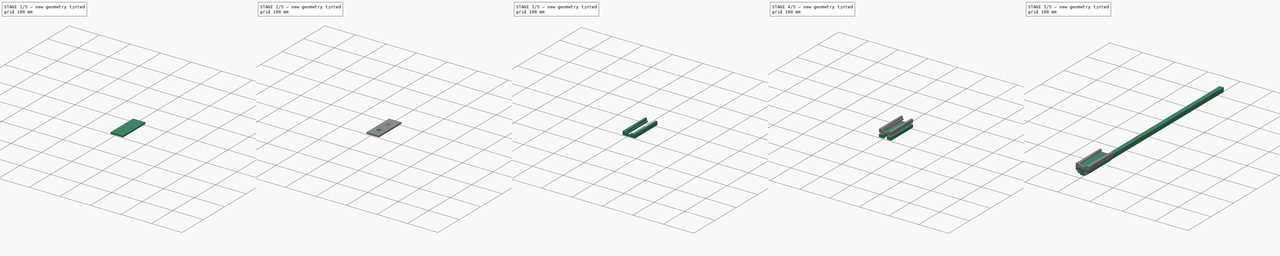
[diagram: build sequence overview — one tinted view per stage of 5, left to right]
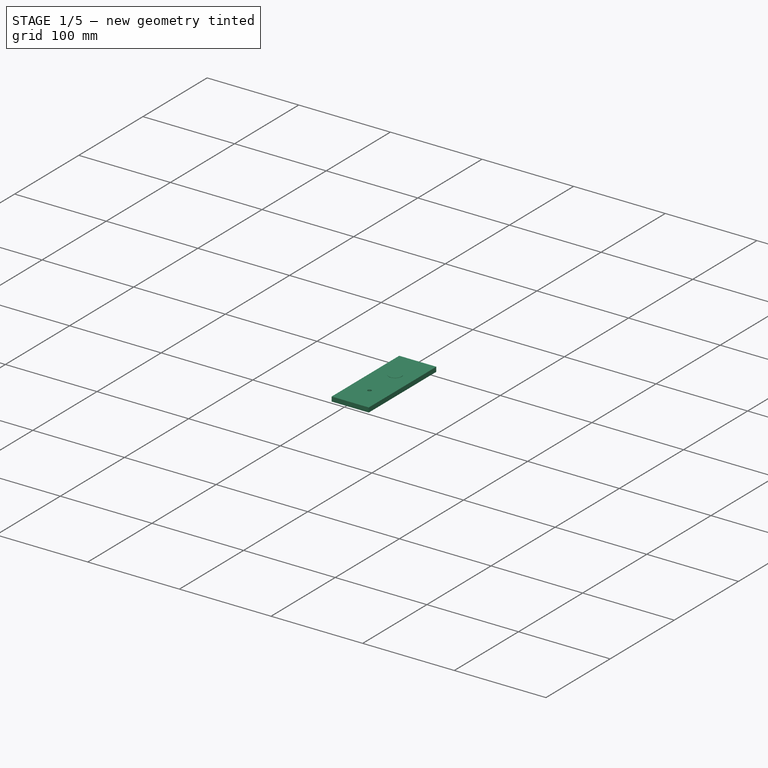
[diagram: stage 1 of 5 — iso view after this stage's code; geometry added in this stage tinted green]
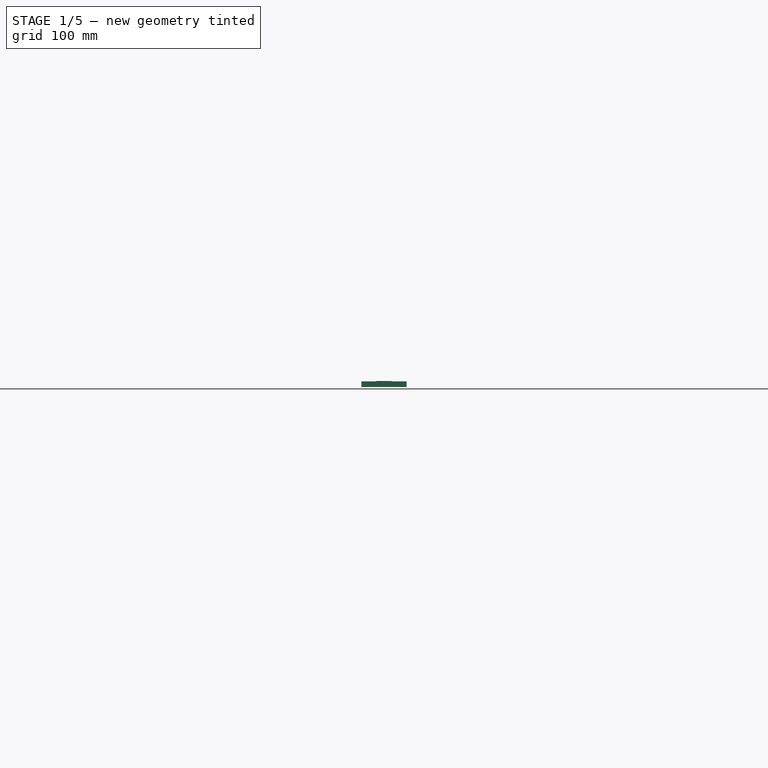
[diagram: stage 1 of 5 — front view after this stage's code; geometry added in this stage tinted green]
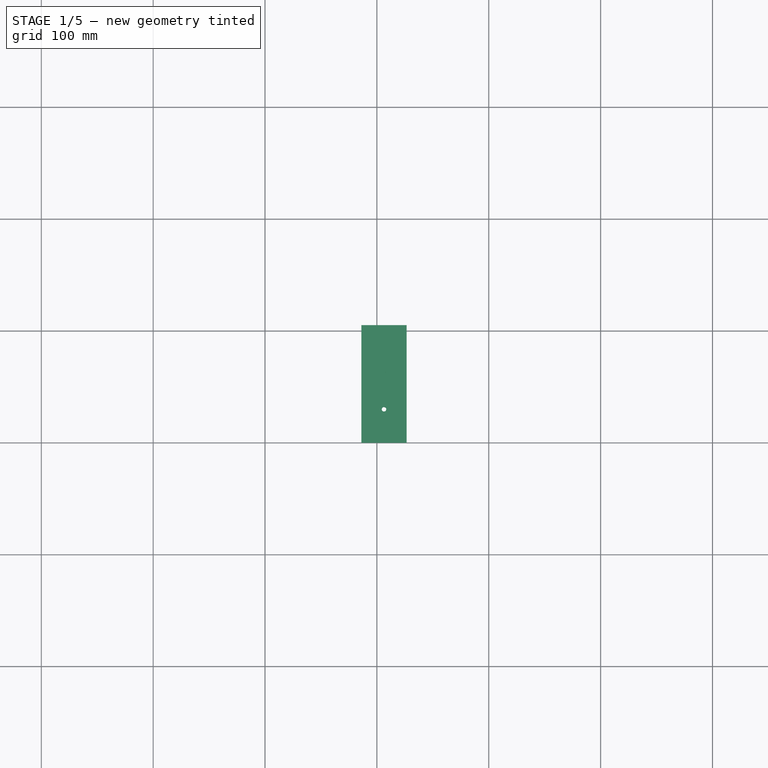
[diagram: stage 1 of 5 — top view after this stage's code; geometry added in this stage tinted green]
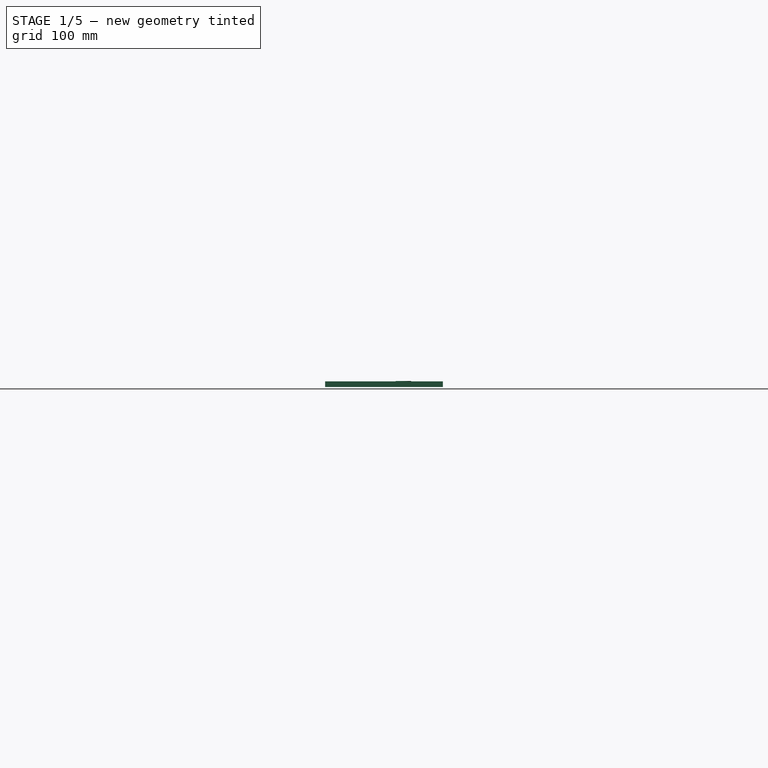
[diagram: stage 1 of 5 — right view after this stage's code; geometry added in this stage tinted green]
FCSTD DOCUMENT  (FreeCAD 0.21R33771 (Git))
Label: pcb_mount
License: All rights reserved
LicenseURL: https://en.wikipedia.org/wiki/All_rights_reserved
objects: Sketcher::SketchObject×5, Part::Extrusion×5, Part::Chamfer×4, Part::Cylinder×4, Part::Cut×4, Part::Box×2, Part::MultiFuse×2, Part::Fillet×1
note: 27 computed .brp shape members not serialized (recipe doc carries the construction recipe); baked Part::Feature solids carry a one-line shape summary decoded from their .brp

FEATURE [Sketcher::SketchObject] Sketch  label="BasePlateSketch"
  FullyConstrained = true
  sketch-geometry (4):
    g0: LineSegment StartX=20.24 StartY=0 StartZ=0 EndX=-20.24 EndY=0 EndZ=0
    g1: LineSegment StartX=-20.24 StartY=0 StartZ=0 EndX=-20.24 EndY=105.25 EndZ=0
    g2: LineSegment StartX=-20.24 StartY=105.25 StartZ=0 EndX=20.24 EndY=105.25 EndZ=0
    g3: LineSegment StartX=20.24 StartY=105.25 StartZ=0 EndX=20.24 EndY=0 EndZ=0
  constraints (12):
    c: Coincident(g0,g1)
    c: Coincident(g1,g2)
    c: Coincident(g2,g3)
    c: Coincident(g3,g0)
    c: Horizontal(g0)
    c: Horizontal(g2)
    c: Vertical(g1)
    c: Vertical(g3)
    c: PointOnObject(g0,g-1)
    c: DistanceX(g0,g0) = 40.48
    c: DistanceY(g1,g1) = 105.25
    c: DistanceX(g-1,g0) = 20.24
FEATURE [Part::Extrusion] Extrude  label="BasePlate"
  Base = -> Sketch
  Dir = (0,0,1)
  DirMode = 2
  FaceMakerClass = Part::FaceMakerBullseye
  LengthFwd = 5
  LengthRev = 0
  Placement = pos=(6.35,0,12.7) rot=(0,0,1;0rad)
  Solid = true
  Symmetric = false
FEATURE [Part::Cylinder] Cylinder  label="screwhole1"
  Angle = 360
  AttacherType = Attacher::AttachEngine3D
  FirstAngle = 0
  Height = 10
  Placement = pos=(6.35,30,10) rot=(0,0,1;0rad)
  Radius = 2
  SecondAngle = 0
FEATURE [Part::Cut] Cut
  Base = -> Extrude
  Tool = -> Cylinder
FEATURE [Part::Cylinder] Cylinder003  label="countersink002"
  Angle = 360
  AttacherType = Attacher::AttachEngine3D
  FirstAngle = 0
  Height = 3
  Placement = pos=(6.35,70,15) rot=(0,0,1;0rad)
  Radius = 7
  SecondAngle = 0
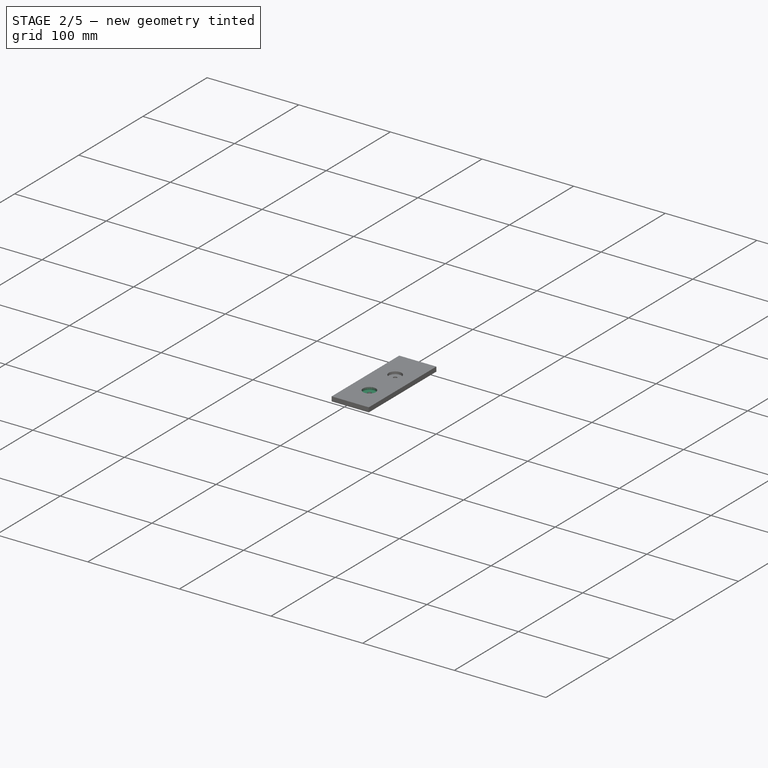
[diagram: stage 2 of 5 — iso view after this stage's code; geometry added in this stage tinted green]
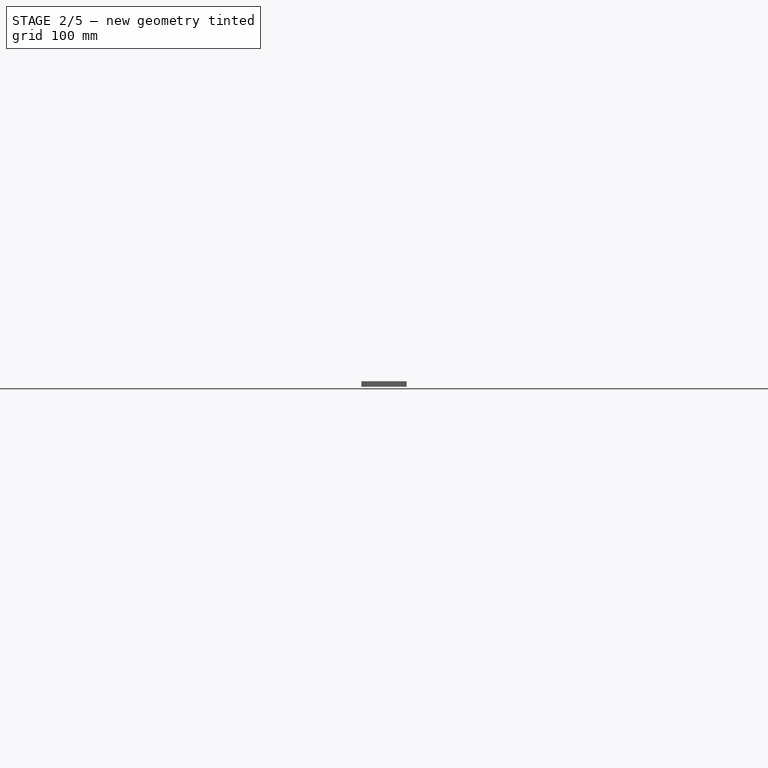
[diagram: stage 2 of 5 — front view after this stage's code; geometry added in this stage tinted green]
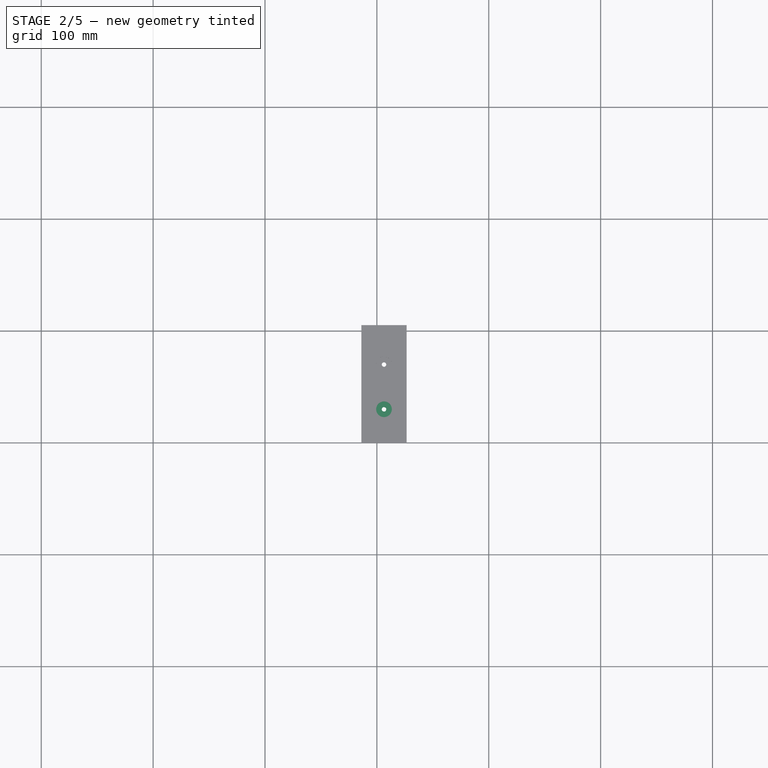
[diagram: stage 2 of 5 — top view after this stage's code; geometry added in this stage tinted green]
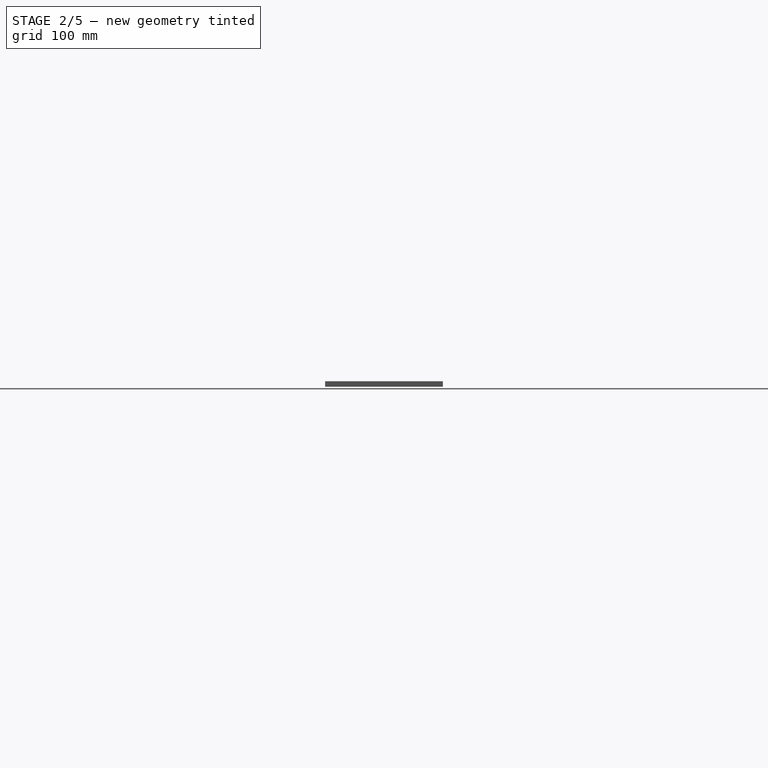
[diagram: stage 2 of 5 — right view after this stage's code; geometry added in this stage tinted green]
FEATURE [Part::Cylinder] Cylinder001  label="screwhole2"
  Angle = 360
  AttacherType = Attacher::AttachEngine3D
  FirstAngle = 0
  Height = 10
  Placement = pos=(6.35,70,10) rot=(0,0,1;0rad)
  Radius = 2
  SecondAngle = 0
FEATURE [Part::Cut] Cut001
  Base = -> Cut
  Tool = -> Cylinder001
FEATURE [Part::Cylinder] Cylinder002  label="countersink1"
  Angle = 360
  AttacherType = Attacher::AttachEngine3D
  FirstAngle = 0
  Height = 3
  Placement = pos=(6.35,30,15) rot=(0,0,1;0rad)
  Radius = 7
  SecondAngle = 0
FEATURE [Part::Cut] Cut002
  Base = -> Cut001
  Tool = -> Cylinder003
FEATURE [Part::Cut] Cut003  label="Baseplate"
  Base = -> Cut002
  Tool = -> Cylinder002
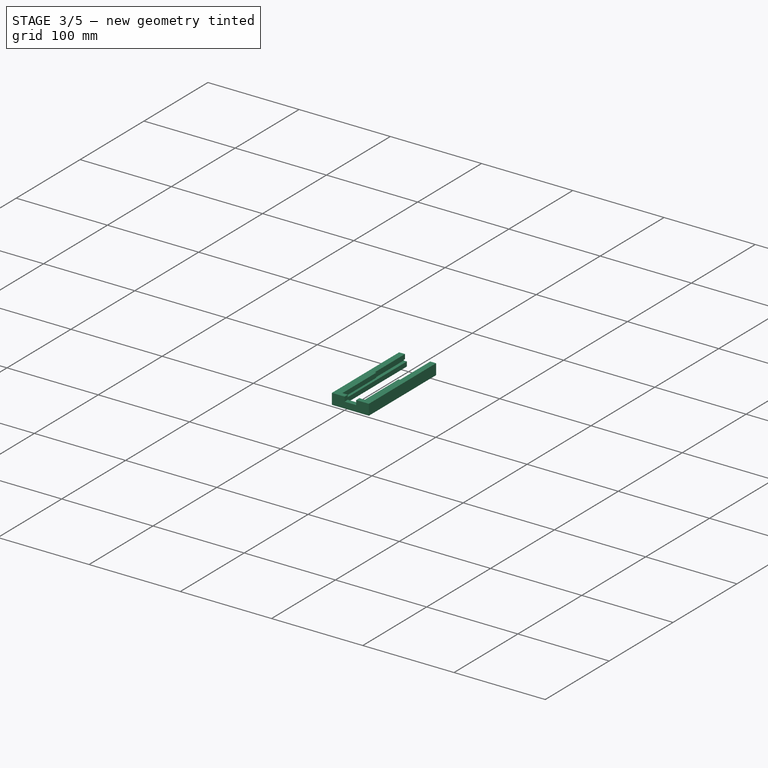
[diagram: stage 3 of 5 — iso view after this stage's code; geometry added in this stage tinted green]
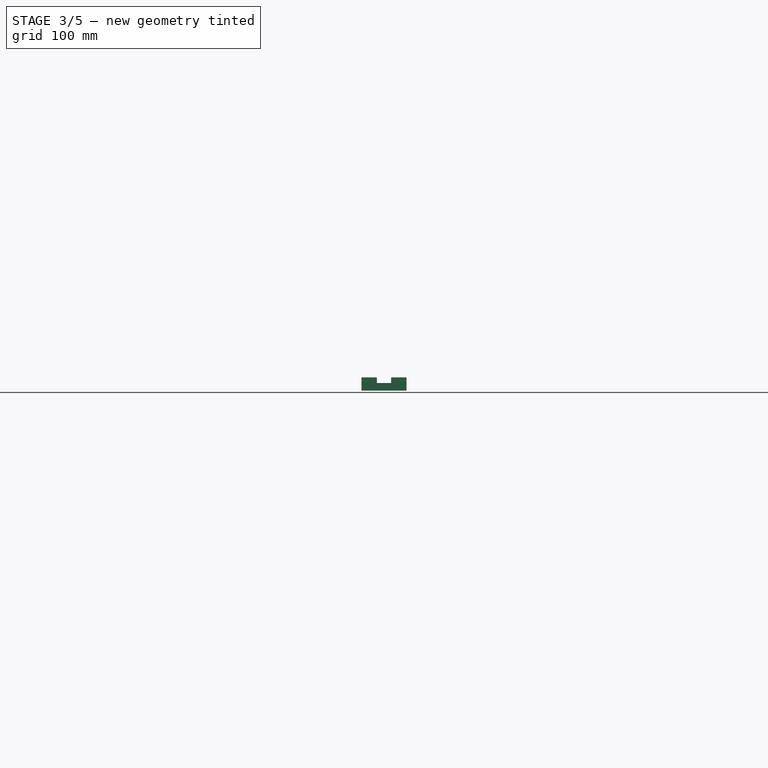
[diagram: stage 3 of 5 — front view after this stage's code; geometry added in this stage tinted green]
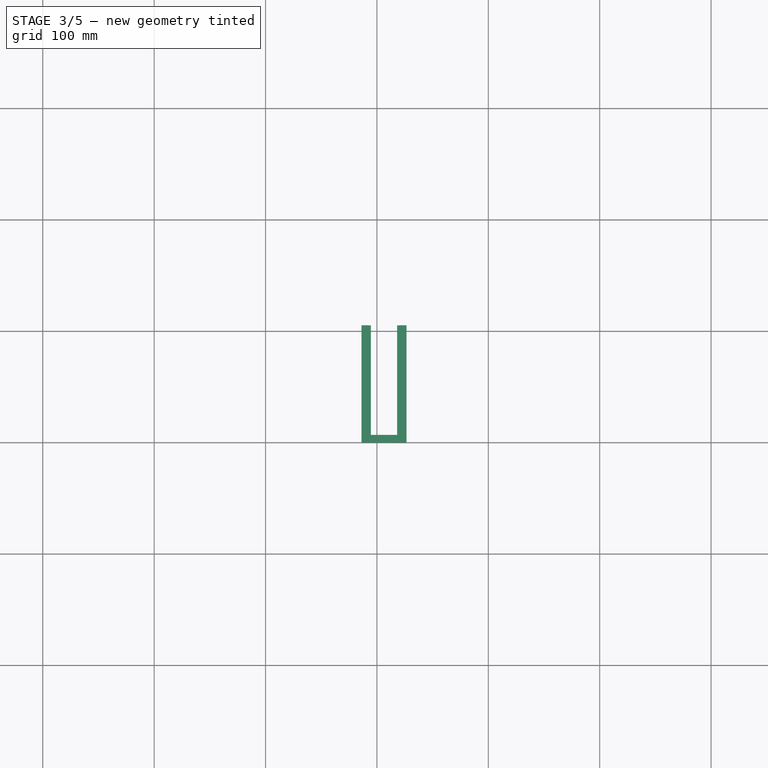
[diagram: stage 3 of 5 — top view after this stage's code; geometry added in this stage tinted green]
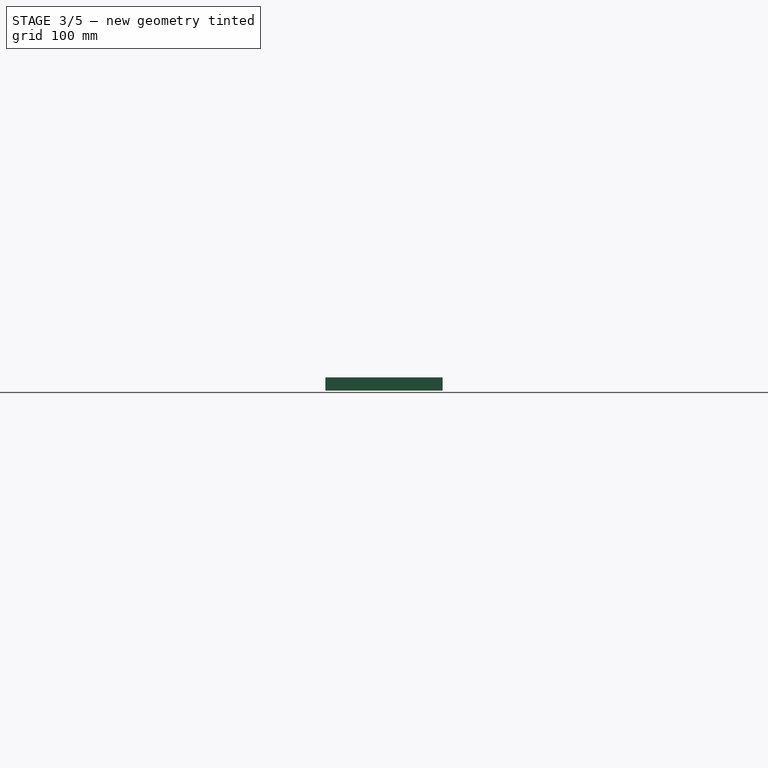
[diagram: stage 3 of 5 — right view after this stage's code; geometry added in this stage tinted green]
FEATURE [Part::Extrusion] Extrude002  label="PCBArmsA"
  Base = -> Sketch002
  Dir = (0,0,1)
  DirMode = 2
  FaceMakerClass = Part::FaceMakerBullseye
  LengthFwd = 5
  LengthRev = 0
  Solid = true
  Symmetric = false
FEATURE [Sketcher::SketchObject] Sketch003
  FullyConstrained = false
  MapMode = 5
  Placement = pos=(0,0,22.7) rot=(0,0,1;0rad)
  Support = -> [Extrude002]
  sketch-geometry (10):
    g0: LineSegment StartX=-13.89 StartY=0 StartZ=0 EndX=26.59 EndY=0 EndZ=0
    g1: LineSegment StartX=26.59 StartY=0 StartZ=0 EndX=26.59 EndY=5 EndZ=0
    g2: LineSegment StartX=-13.89 StartY=5 StartZ=0 EndX=-13.89 EndY=0 EndZ=0
    g3: LineSegment StartX=-8.89 StartY=5 StartZ=0 EndX=-8.89 EndY=105.25 EndZ=0
    g4: LineSegment StartX=-8.89 StartY=105.25 StartZ=0 EndX=-13.89 EndY=105.25 EndZ=0
    g5: LineSegment StartX=-13.89 StartY=105.25 StartZ=0 EndX=-13.89 EndY=5 EndZ=0
    g6: LineSegment StartX=26.59 StartY=5 StartZ=0 EndX=26.59 EndY=105.25 EndZ=0
    g7: LineSegment StartX=26.59 StartY=105.25 StartZ=0 EndX=21.59 EndY=105.25 EndZ=0
    g8: LineSegment StartX=21.59 StartY=105.25 StartZ=0 EndX=21.59 EndY=5 EndZ=0
    g9: LineSegment StartX=-8.89 StartY=5 StartZ=0 EndX=21.59 EndY=5 EndZ=0
  constraints (31):
    c: Coincident(g0,g1)
    c: Coincident(g2,g0)
    c: Horizontal(g0)
    c: Vertical(g1)
    c: Vertical(g2)
    c: PointOnObject(g0,g-1)
    c: DistanceX(g0,g0) = 40.48
    c: DistanceY(g2,g2) = 5
    c: DistanceX(g0,g-1) = 13.89
    c: Coincident(g3,g4)
    c: Coincident(g4,g5)
    c: Horizontal(g4)
    c: Vertical(g3)
    c: Vertical(g5)
    c: DistanceY(g5,g5) = 100.25
    c: DistanceX(g4,g4) = 5
    c: Coincident(g6,g7)
    c: Coincident(g7,g8)
    c: Horizontal(g7)
    c: Vertical(g6)
    c: Vertical(g8)
    c: DistanceY(g6,g6) = 100.25
    c: Coincident(g9,g3)
    c: Coincident(g9,g8)
    c: Horizontal(g9)
    c: DistanceX(g8,g1) = 5
    c: DistanceX(g2,g3) = 5
    c: DistanceY(g0,g3) = 5
    c: DistanceY(g1,g1) = 5
    c: DistanceY(g3,g3) = 100.25
    c: DistanceY(g8,g8) = 100.25
FEATURE [Part::Extrusion] Extrude003  label="PCBArmsB"
  Base = -> Sketch003
  Dir = (0,0,1)
  DirMode = 2
  FaceMakerClass = Part::FaceMakerBullseye
  LengthFwd = 1.8
  LengthRev = 0
  Solid = true
  Symmetric = false
FEATURE [Sketcher::SketchObject] Sketch004  label="PCBArmsCSketch"
  FullyConstrained = true
  MapMode = 5
  Placement = pos=(0,0,24.5) rot=(0,0,1;0rad)
  Support = -> [Extrude003]
  sketch-geometry (17):
    g0: LineSegment StartX=-7.49 StartY=105.25 StartZ=0 EndX=-13.89 EndY=105.25 EndZ=0
    g1: LineSegment StartX=-13.89 StartY=105.25 StartZ=0 EndX=-13.89 EndY=0 EndZ=0
    g2: LineSegment StartX=26.59 StartY=0 StartZ=0 EndX=26.59 EndY=105.25 EndZ=0
    g3: LineSegment StartX=26.59 StartY=105.25 StartZ=0 EndX=20.19 EndY=105.25 EndZ=0
    g4: LineSegment StartX=-5.89 StartY=5 StartZ=0 EndX=-5.89 EndY=58 EndZ=0
    g5: LineSegment StartX=-5.89 StartY=58 StartZ=0 EndX=-7.49 EndY=58 EndZ=0
    g6: LineSegment StartX=-7.49 StartY=58 StartZ=0 EndX=-7.49 EndY=105.25 EndZ=0
    g7: LineSegment StartX=-5.89 StartY=5 StartZ=0 EndX=0 EndY=5 EndZ=0
    g8: LineSegment StartX=0 StartY=5 StartZ=0 EndX=0 EndY=0 EndZ=0
    g9: LineSegment StartX=20.19 StartY=105.25 StartZ=0 EndX=20.19 EndY=58 EndZ=0
    g10: LineSegment StartX=20.19 StartY=58 StartZ=0 EndX=18.59 EndY=58 EndZ=0
    g11: LineSegment StartX=18.59 StartY=58 StartZ=0 EndX=18.59 EndY=5 EndZ=0
    g12: LineSegment StartX=12.7 StartY=0 StartZ=0 EndX=18.59 EndY=0 EndZ=0
    g13: LineSegment StartX=12.7 StartY=5 StartZ=0 EndX=12.7 EndY=0 EndZ=0
    g14: LineSegment StartX=18.59 StartY=0 StartZ=0 EndX=26.59 EndY=0 EndZ=0
    g15: LineSegment StartX=12.7 StartY=5 StartZ=0 EndX=18.59 EndY=5 EndZ=0
    g16: LineSegment StartX=-13.89 StartY=0 StartZ=0 EndX=0 EndY=0 EndZ=0
  constraints (50):
    c: Coincident(g0,g1)
    c: Horizontal(g0)
    c: Vertical(g1)
    c: PointOnObject(g1,g-1)
    c: DistanceX(g0,g0) = 6.4
    c: DistanceX(g1,g-1) = 13.89
    c: Coincident(g2,g3)
    c: Horizontal(g3)
    c: Vertical(g2)
    c: DistanceX(g3,g3) = 6.4
    c: DistanceY(g2,g2) = 105.25
    c: DistanceX(g4,g-1) = 5.89
    c: Vertical(g4)
    c: DistanceY(g4,g4) = 53
    c: Coincident(g5,g4)
    c: Horizontal(g5)
    c: DistanceX(g5,g5) = 1.6
    c: Coincident(g6,g5)
    c: Coincident(g6,g0)
    c: DistanceY(g6,g6) = 47.25
    c: Coincident(g7,g8)
    c: Horizontal(g7)
    c: Vertical(g8)
    c: Coincident(g7,g4)
    c: Coincident(g8,g-1)
    c: Coincident(g9,g3)
    c: Vertical(g9)
    c: DistanceY(g9,g9) = 47.25
    c: Coincident(g10,g9)
    c: DistanceX(g10,g10) = 1.6
    c: Coincident(g11,g10)
    c: Vertical(g11)
    c: DistanceY(g11,g11) = 53
    c: Coincident(g13,g12)
    c: Horizontal(g12)
    c: Vertical(g13)
    c: PointOnObject(g12,g-1)
    c: DistanceX(g12,g12) = 5.89
    c: DistanceX(g7,g13) = 12.7
    c: Coincident(g14,g12)
    c: Coincident(g14,g2)
    c: Horizontal(g14)
    c: DistanceY(g8,g8) = 5
    c: DistanceY(g13,g13) = 5
    c: Coincident(g15,g13)
    c: Coincident(g15,g11)
    c: DistanceX(g14,g14) = 8
    c: DistanceY(g12,g11) = 5
    c: Coincident(g16,g1)
    c: Coincident(g16,g8)
FEATURE [Part::Extrusion] Extrude004  label="PCBArmsC"
  Base = -> Sketch004
  Dir = (0,0,1)
  DirMode = 2
  FaceMakerClass = Part::FaceMakerBullseye
  LengthFwd = 5
  LengthRev = 0
  Solid = true
  Symmetric = false
FEATURE [Part::MultiFuse] Fusion  label="Holder"
  Shapes = -> [Extrude004,Extrude002,Extrude003]
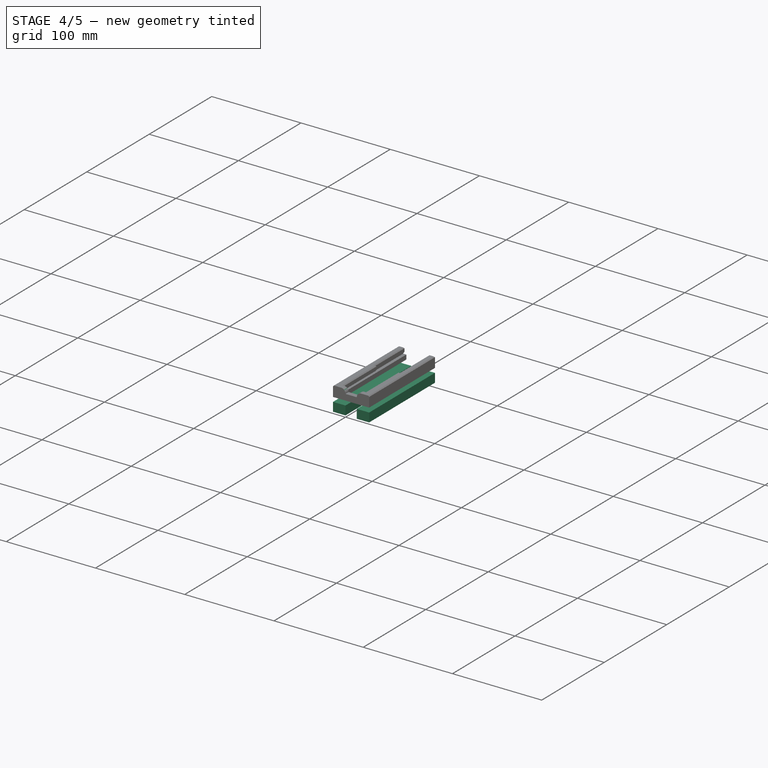
[diagram: stage 4 of 5 — iso view after this stage's code; geometry added in this stage tinted green]
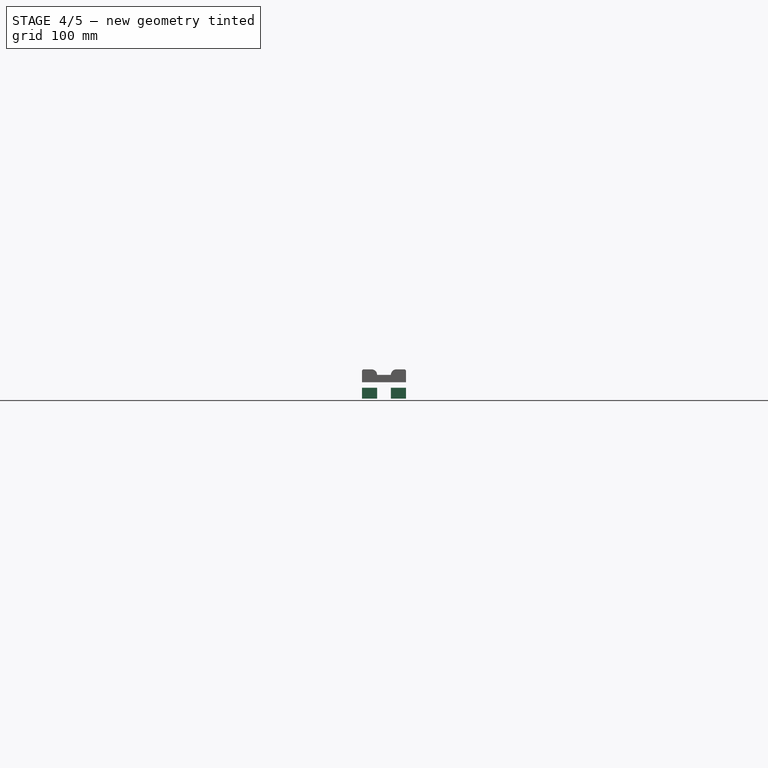
[diagram: stage 4 of 5 — front view after this stage's code; geometry added in this stage tinted green]
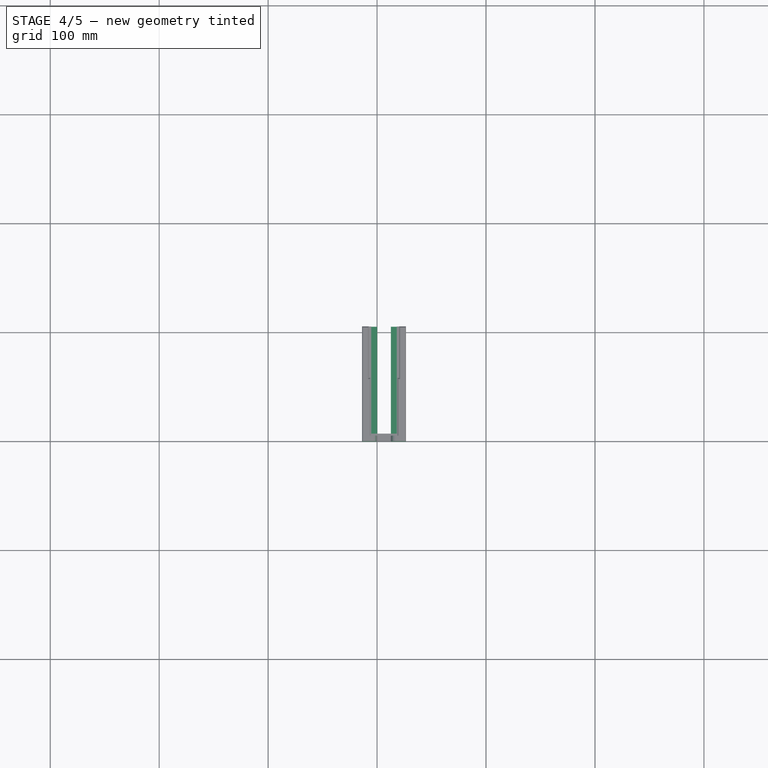
[diagram: stage 4 of 5 — top view after this stage's code; geometry added in this stage tinted green]
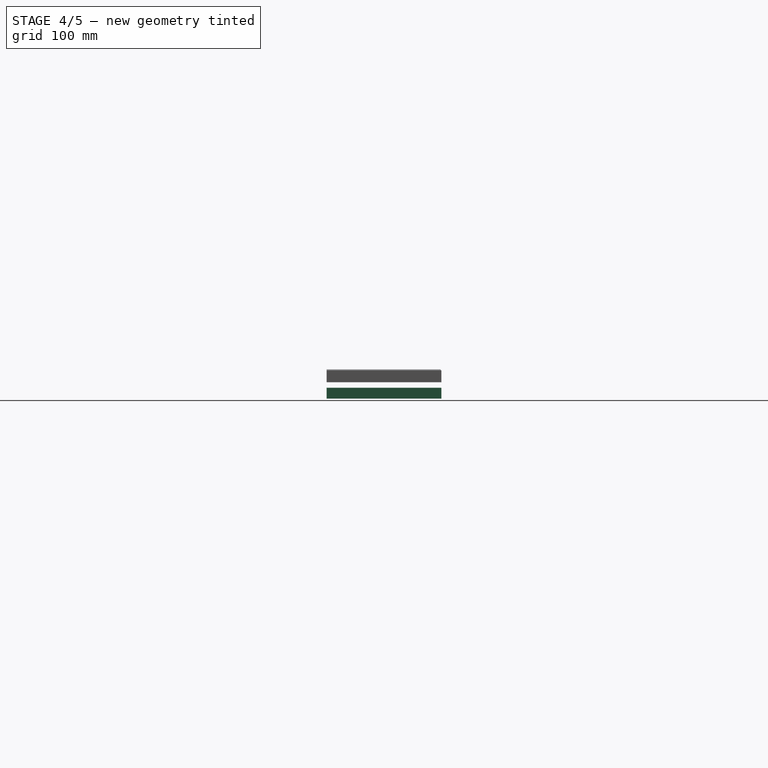
[diagram: stage 4 of 5 — right view after this stage's code; geometry added in this stage tinted green]
FEATURE [Sketcher::SketchObject] Sketch001  label="ArmsSketch"
  FullyConstrained = true
  MapMode = 2
  Placement = pos=(6.35,0,12.7) rot=(0,0,1;0rad)
  Support = -> [Extrude]
  sketch-geometry (8):
    g0: LineSegment StartX=-6.35 StartY=0 StartZ=0 EndX=-20.24 EndY=0 EndZ=0
    g1: LineSegment StartX=-20.24 StartY=0 StartZ=0 EndX=-20.24 EndY=105.25 EndZ=0
    g2: LineSegment StartX=-20.24 StartY=105.25 StartZ=0 EndX=-6.35 EndY=105.25 EndZ=0
    g3: LineSegment StartX=-6.35 StartY=105.25 StartZ=0 EndX=-6.35 EndY=0 EndZ=0
    g4: LineSegment StartX=6.35 StartY=0 StartZ=0 EndX=20.24 EndY=0 EndZ=0
    g5: LineSegment StartX=20.24 StartY=0 StartZ=0 EndX=20.24 EndY=105.25 EndZ=0
    g6: LineSegment StartX=20.24 StartY=105.25 StartZ=0 EndX=6.35 EndY=105.25 EndZ=0
    g7: LineSegment StartX=6.35 StartY=105.25 StartZ=0 EndX=6.35 EndY=0 EndZ=0
  constraints (24):
    c: Coincident(g0,g1)
    c: Coincident(g1,g2)
    c: Coincident(g2,g3)
    c: Coincident(g3,g0)
    c: Horizontal(g0)
    c: Horizontal(g2)
    c: Vertical(g1)
    c: Vertical(g3)
    c: PointOnObject(g0,g-1)
    c: DistanceY(g1,g1) = 105.25
    c: DistanceX(g0,g-1) = 6.35
    c: Coincident(g4,g5)
    c: Coincident(g5,g6)
    c: Coincident(g6,g7)
    c: Coincident(g7,g4)
    c: Horizontal(g4)
    c: Horizontal(g6)
    c: Vertical(g5)
    c: Vertical(g7)
    c: PointOnObject(g4,g-1)
    c: DistanceY(g5,g5) = 105.25
    c: DistanceX(g-1,g4) = 6.35
    c: DistanceX(g0,g0) = 13.89
    c: DistanceX(g4,g4) = 13.89
FEATURE [Part::Extrusion] Extrude001  label="Arms"
  Base = -> Sketch001
  Dir = (0,0,1)
  DirMode = 2
  FaceMakerClass = Part::FaceMakerBullseye
  LengthFwd = -10
  LengthRev = 0
  Solid = true
  Symmetric = false
FEATURE [Part::Chamfer] Chamfer001
  Base = -> Fusion
  Edges = 10 edges r=1: [Edge58,Edge65,Edge87,Edge88,Edge89,Edge99,Edge101,Edge103,Edge105,Edge106]
FEATURE [Part::Fillet] Fillet
  Base = -> Chamfer001
  Edges = 2 edges r=4.9: [Edge28,Edge100]
FEATURE [Part::Chamfer] Chamfer002
  Base = -> Fillet
  Edges = 2 edges r=1: [Edge53,Edge56]
FEATURE [Part::Chamfer] Chamfer003
  Base = -> Chamfer002
  Edges = 2 edges r=1: [Edge75,Edge77]
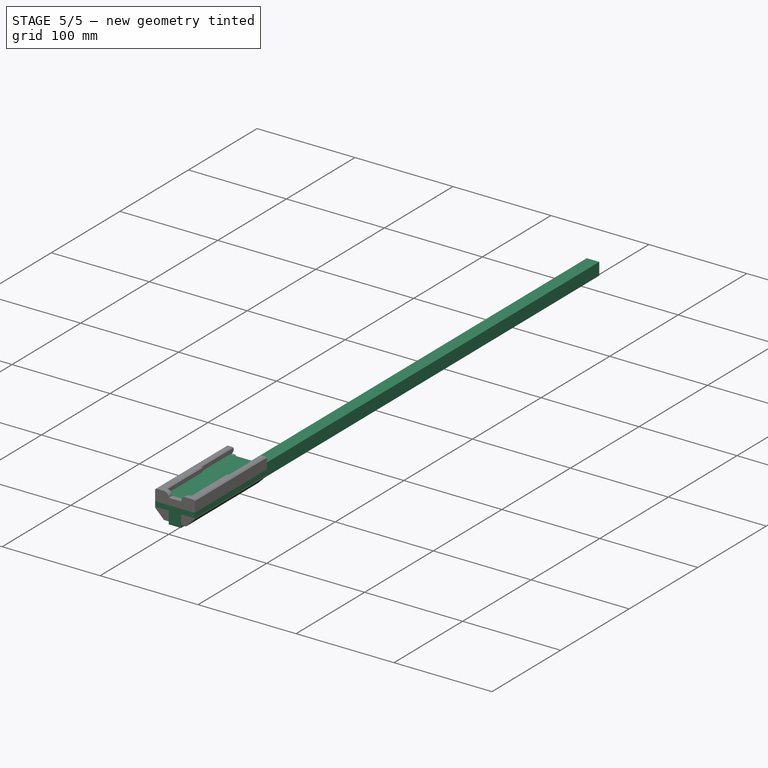
[diagram: stage 5 of 5 — iso view after this stage's code; geometry added in this stage tinted green]
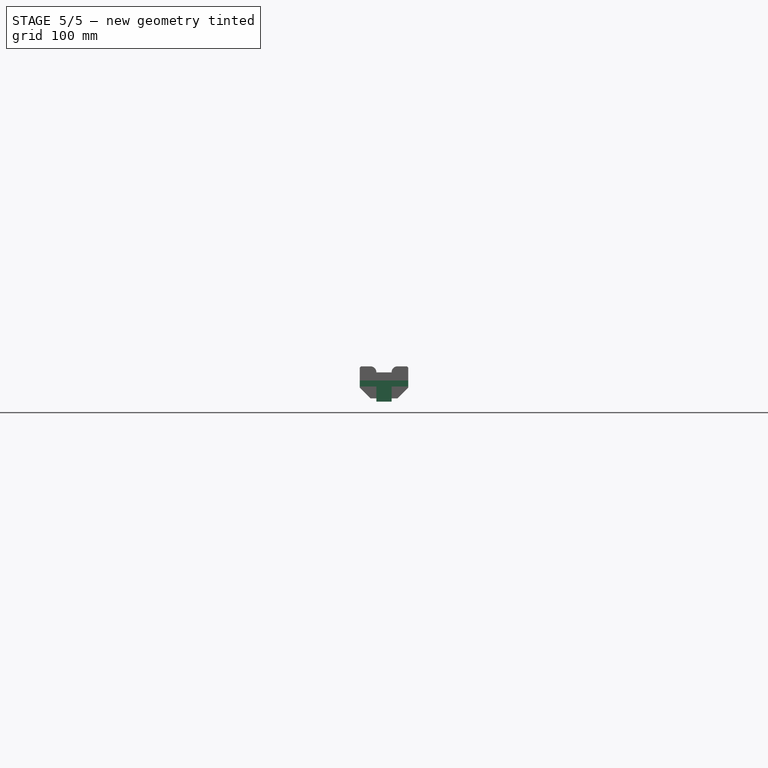
[diagram: stage 5 of 5 — front view after this stage's code; geometry added in this stage tinted green]
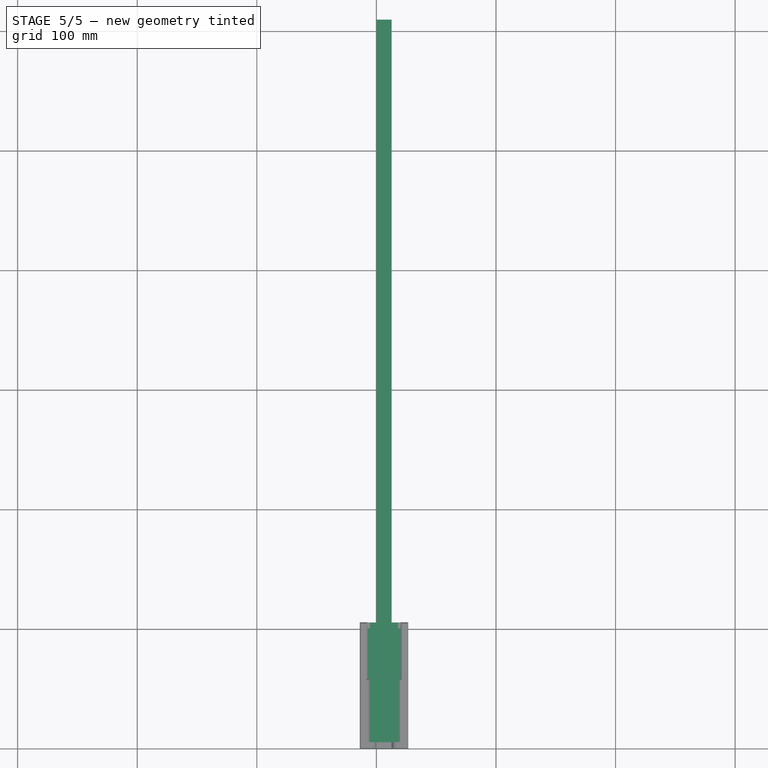
[diagram: stage 5 of 5 — top view after this stage's code; geometry added in this stage tinted green]
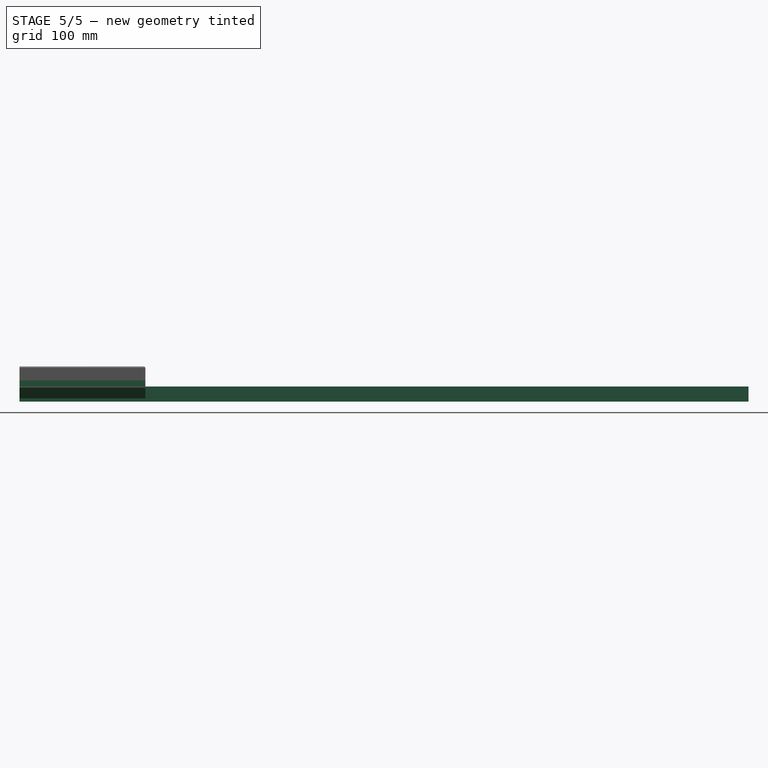
[diagram: stage 5 of 5 — right view after this stage's code; geometry added in this stage tinted green]
FEATURE [Part::Box] Box  label="Dowel"
  AttacherType = Attacher::AttachEngine3D
  Height = 12.7
  Length = 12.7
  Width = 609.6
FEATURE [Part::Chamfer] Chamfer  label="SupportArms"
  Base = -> Extrude001
  Edges = 2 edges r=9: [Edge7,Edge19]
FEATURE [Sketcher::SketchObject] Sketch002  label="PCBArmsSketch"
  FullyConstrained = true
  MapMode = 5
  Placement = pos=(0,0,17.7) rot=(0,0,1;0rad)
  Support = -> [Cut003]
  sketch-geometry (10):
    g0: LineSegment StartX=-13.89 StartY=0 StartZ=0 EndX=-8.89 EndY=0 EndZ=0
    g1: LineSegment StartX=-5.39 StartY=105.25 StartZ=0 EndX=-13.89 EndY=105.25 EndZ=0
    g2: LineSegment StartX=-13.89 StartY=105.25 StartZ=0 EndX=-13.89 EndY=0 EndZ=0
    g3: LineSegment StartX=21.59 StartY=0 StartZ=0 EndX=26.59 EndY=0 EndZ=0
    g4: LineSegment StartX=26.59 StartY=0 StartZ=0 EndX=26.59 EndY=105.25 EndZ=0
    g5: LineSegment StartX=26.59 StartY=105.25 StartZ=0 EndX=18.09 EndY=105.25 EndZ=0
    g6: LineSegment StartX=-8.89 StartY=0 StartZ=0 EndX=21.59 EndY=0 EndZ=0
    g7: LineSegment StartX=18.09 StartY=7 StartZ=0 EndX=-5.39 EndY=7 EndZ=0
    g8: LineSegment StartX=-5.39 StartY=105.25 StartZ=0 EndX=-5.39 EndY=7 EndZ=0
    g9: LineSegment StartX=18.09 StartY=7 StartZ=0 EndX=18.09 EndY=105.25 EndZ=0
  constraints (31):
    c: Coincident(g1,g2)
    c: Coincident(g2,g0)
    c: Horizontal(g0)
    c: Horizontal(g1)
    c: Vertical(g2)
    c: PointOnObject(g0,g-1)
    c: DistanceX(g0,g0) = 5
    c: DistanceY(g2,g2) = 105.25
    c: Coincident(g3,g4)
    c: Coincident(g4,g5)
    c: Horizontal(g3)
    c: Horizontal(g5)
    c: Vertical(g4)
    c: PointOnObject(g3,g-1)
    c: DistanceY(g3,g5) = 105.25
    c: DistanceX(g5,g5) = 8.5
    c: DistanceX(g0,g-1) = 13.89
    c: DistanceX(g-1,g3) = 21.59
    c: Horizontal(g6)
    c: Horizontal(g7)
    c: Coincident(g6,g0)
    c: DistanceY(g0,g7) = 7
    c: Coincident(g8,g1)
    c: Coincident(g8,g7)
    c: Vertical(g8)
    c: Coincident(g9,g7)
    c: Coincident(g9,g5)
    c: Vertical(g9)
    c: DistanceX(g1,g1) = 8.5
    c: DistanceX(g7,g7) = 23.48
    c: DistanceX(g6,g6) = 30.48
FEATURE [Part::Box] Box001  label="PCB"
  AttacherType = Attacher::AttachEngine3D
  Height = 1.6
  Length = 30.48
  Placement = pos=(-8.89,5,22.72) rot=(0,0,1;0rad)
  Width = 95.25
FEATURE [Part::MultiFuse] Fusion001
  Shapes = -> [Chamfer003,Cut003,Chamfer]
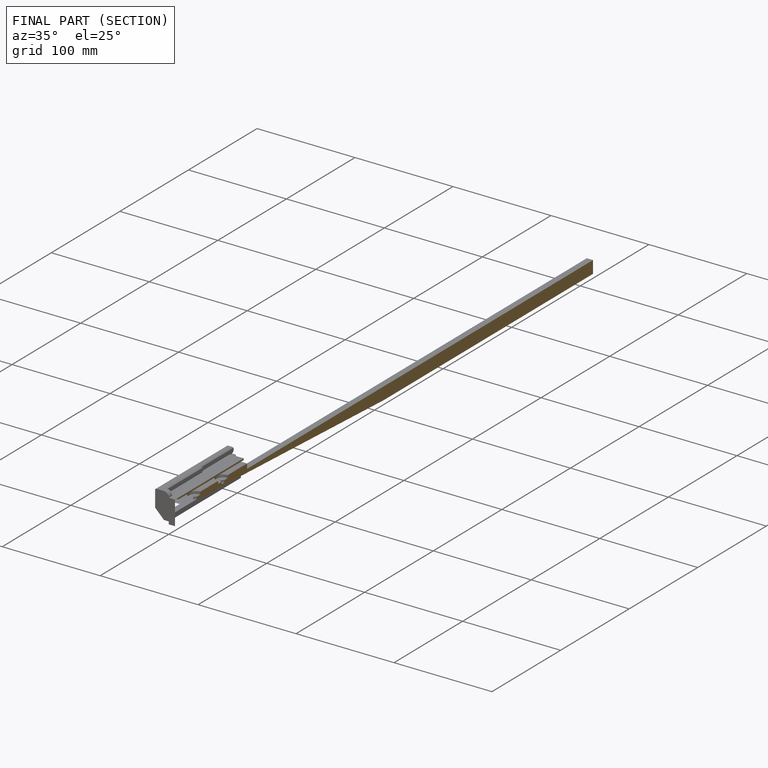
[diagram: finished part — half-section view (interior)]
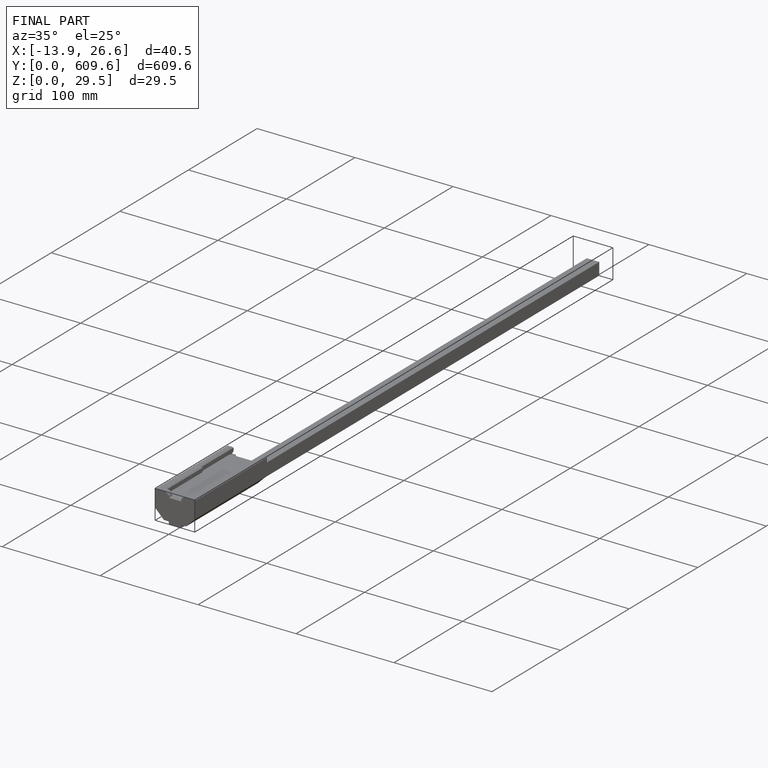
[diagram: finished part — iso view with bounding-box wireframe]
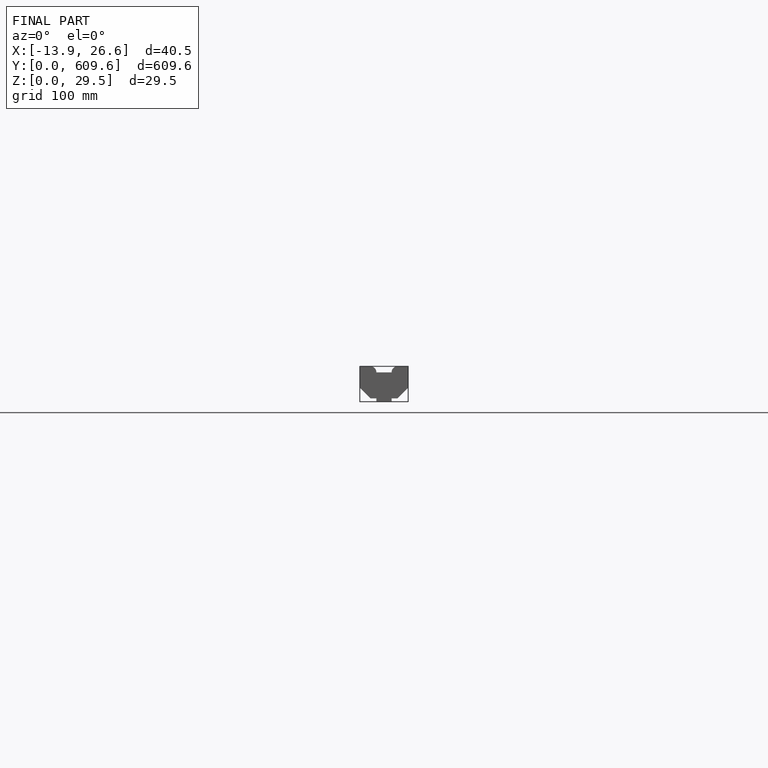
[diagram: finished part — front view with bounding-box wireframe]
